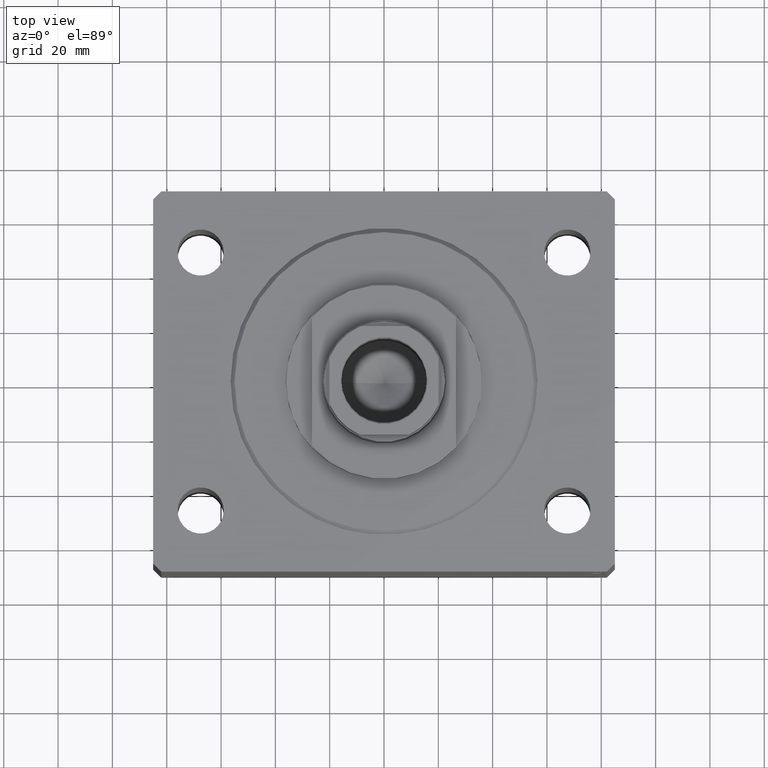
[diagram: clean part render]
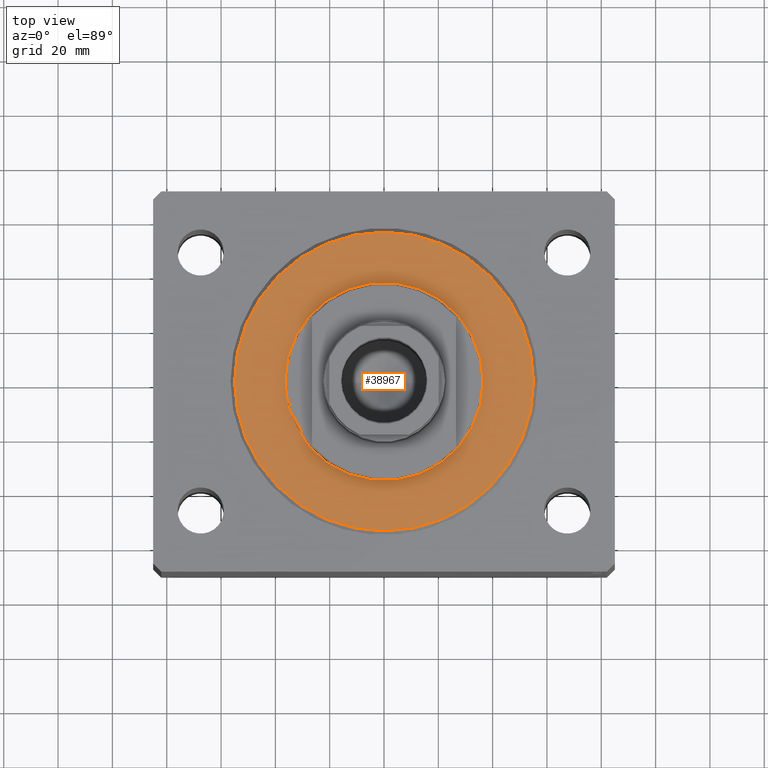
[diagram: same view with one face highlighted and labeled with its STEP entity id]
A machine part, top view. The second image highlights one B-rep face of the part: STEP entity #38967.
In plain terms, the highlighted planar face has unit normal (0, 0, -1).
Its self-contained STEP definition (entity closure, byte-faithful):
#263 = ORIENTED_EDGE ( 'NONE', *, *, #6834, .T. ) ;
#454 = VERTEX_POINT ( 'NONE', #16686 ) ;
#1350 = CARTESIAN_POINT ( 'NONE',  ( 0.000000000000000000, 0.000000000000000000, 0.000000000000000000 ) ) ;
#2920 = DIRECTION ( 'NONE',  ( 1.000000000000000000, 0.000000000000000000, 0.000000000000000000 ) ) ;
#6834 = EDGE_CURVE ( 'NONE', #41741, #23503, #27390, .T. ) ;
#7263 = EDGE_LOOP ( 'NONE', ( #35857, #20987 ) ) ;
#7945 = AXIS2_PLACEMENT_3D ( 'NONE', #17248, #41152, #41607 ) ;
#8402 = DIRECTION ( 'NONE',  ( 1.000000000000000000, 0.000000000000000000, -0.000000000000000000 ) ) ;
#9534 = EDGE_LOOP ( 'NONE', ( #27105, #263 ) ) ;
#14646 = AXIS2_PLACEMENT_3D ( 'NONE', #1350, #35400, #41730 ) ;
#15908 = CARTESIAN_POINT ( 'NONE',  ( 55.00000000000002132, 0.000000000000000000, 0.000000000000000000 ) ) ;
#16344 = DIRECTION ( 'NONE',  ( -0.000000000000000000, -0.000000000000000000, -1.000000000000000000 ) ) ;
#16640 = CIRCLE ( 'NONE', #41848, 55.00000000000002132 ) ;
#16686 = CARTESIAN_POINT ( 'NONE',  ( -36.50000000000000000, 4.469960816887838430E-15, -2.168404344971008868E-16 ) ) ;
#17217 = CARTESIAN_POINT ( 'NONE',  ( 0.000000000000000000, 0.000000000000000000, 0.000000000000000000 ) ) ;
#17248 = CARTESIAN_POINT ( 'NONE',  ( 0.000000000000000000, 0.000000000000000000, 0.000000000000000000 ) ) ;
#18552 = FACE_OUTER_BOUND ( 'NONE', #9534, .T. ) ;
#19167 = CARTESIAN_POINT ( 'NONE',  ( -55.00000000000002132, 6.827405905246496343E-15, 0.000000000000000000 ) ) ;
#20987 = ORIENTED_EDGE ( 'NONE', *, *, #23271, .T. ) ;
#21267 = CARTESIAN_POINT ( 'NONE',  ( 0.000000000000000000, 0.000000000000000000, 0.000000000000000000 ) ) ;
#21848 = AXIS2_PLACEMENT_3D ( 'NONE', #21267, #32303, #8402 ) ;
#23271 = EDGE_CURVE ( 'NONE', #454, #29945, #23429, .T. ) ;
#23429 = CIRCLE ( 'NONE', #38564, 36.50000000000000000 ) ;
#23503 = VERTEX_POINT ( 'NONE', #15908 ) ;
#26615 = DIRECTION ( 'NONE',  ( 0.000000000000000000, 0.000000000000000000, 1.000000000000000000 ) ) ;
#26914 = CIRCLE ( 'NONE', #14646, 36.50000000000000000 ) ;
#27105 = ORIENTED_EDGE ( 'NONE', *, *, #40470, .T. ) ;
#27390 = CIRCLE ( 'NONE', #7945, 55.00000000000002132 ) ;
#29945 = VERTEX_POINT ( 'NONE', #42205 ) ;
#30101 = DIRECTION ( 'NONE',  ( 1.000000000000000000, 0.000000000000000000, 0.000000000000000000 ) ) ;
#32303 = DIRECTION ( 'NONE',  ( 0.000000000000000000, 0.000000000000000000, 1.000000000000000000 ) ) ;
#32531 = FACE_BOUND ( 'NONE', #7263, .T. ) ;
#35400 = DIRECTION ( 'NONE',  ( 0.000000000000000000, 0.000000000000000000, 1.000000000000000000 ) ) ;
#35857 = ORIENTED_EDGE ( 'NONE', *, *, #39148, .T. ) ;
#37639 = CARTESIAN_POINT ( 'NONE',  ( 0.000000000000000000, 0.000000000000000000, 0.000000000000000000 ) ) ;
#38564 = AXIS2_PLACEMENT_3D ( 'NONE', #37639, #26615, #2920 ) ;
#38848 = PLANE ( 'NONE',  #21848 ) ;
#38967 = ADVANCED_FACE ( 'NONE', ( #32531, #18552 ), #38848, .F. ) ;
#39148 = EDGE_CURVE ( 'NONE', #29945, #454, #26914, .T. ) ;
#40470 = EDGE_CURVE ( 'NONE', #23503, #41741, #16640, .T. ) ;
#41152 = DIRECTION ( 'NONE',  ( -0.000000000000000000, -0.000000000000000000, -1.000000000000000000 ) ) ;
#41607 = DIRECTION ( 'NONE',  ( 1.000000000000000000, 0.000000000000000000, 0.000000000000000000 ) ) ;
#41730 = DIRECTION ( 'NONE',  ( 1.000000000000000000, 0.000000000000000000, 0.000000000000000000 ) ) ;
#41741 = VERTEX_POINT ( 'NONE', #19167 ) ;
#41848 = AXIS2_PLACEMENT_3D ( 'NONE', #17217, #16344, #30101 ) ;
#42205 = CARTESIAN_POINT ( 'NONE',  ( 36.50000000000000000, 0.000000000000000000, -2.168404344971008868E-16 ) ) ;